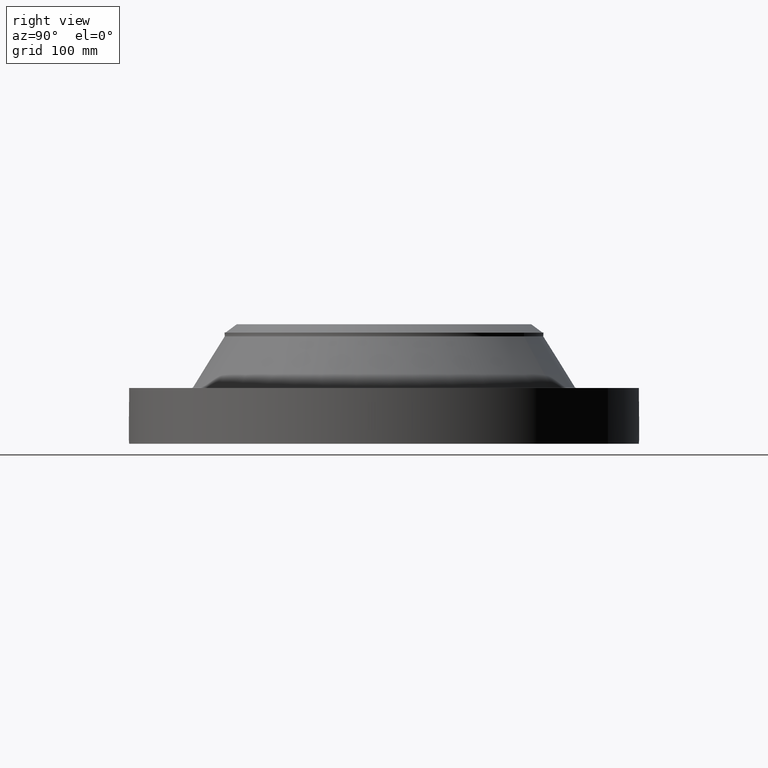
[diagram: clean part render]
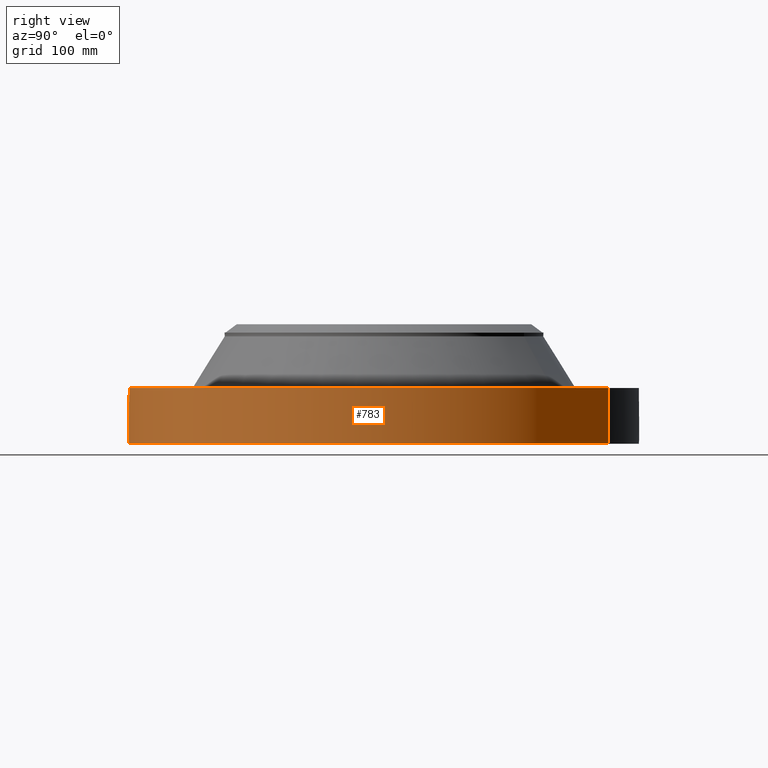
[diagram: same view with one face highlighted and labeled with its STEP entity id]
A machine part, right view. The second image highlights one B-rep face of the part: STEP entity #783.
In plain terms, the highlighted cylindrical surface (partial cylindrical patch) has radius 406.4 mm, axis along (0, 0, -1).
Its self-contained STEP definition (entity closure, byte-faithful):
#38=AXIS2_PLACEMENT_3D('Cylinder Axis2P3D',#35,#36,#37) ;
#169=AXIS2_PLACEMENT_3D('Circle Axis2P3D',#167,#168,$) ;
#687=AXIS2_PLACEMENT_3D('Circle Axis2P3D',#685,#686,$) ;
#35=CARTESIAN_POINT('Axis2P3D Location',(0.,0.,4.00000000002)) ;
#44=CARTESIAN_POINT('Vertex',(-7.6708086177,-14.0413209903,0.250000000001)) ;
#46=CARTESIAN_POINT('Vertex',(7.6708086177,14.0413209903,0.250000000001)) ;
#49=CARTESIAN_POINT('Line Origine',(-7.6708086177,-14.0413209903,2.00000000001)) ;
#53=CARTESIAN_POINT('Vertex',(-7.6708086177,-14.0413209903,3.75000000002)) ;
#60=CARTESIAN_POINT('Vertex',(7.6708086177,14.0413209903,3.75000000002)) ;
#63=CARTESIAN_POINT('Line Origine',(7.6708086177,14.0413209903,2.00000000001)) ;
#167=CARTESIAN_POINT('Axis2P3D Location',(0.,0.,0.250000000001)) ;
#685=CARTESIAN_POINT('Axis2P3D Location',(0.,0.,3.75000000002)) ;
#697=CARTESIAN_POINT('Control Point',(0.000716008740649,-15.999999984,1.2941184614)) ;
#698=CARTESIAN_POINT('Control Point',(0.0189155164198,-15.9999991696,1.29408170801)) ;
#699=CARTESIAN_POINT('Control Point',(0.0371118540406,-15.9999670595,1.29263810614)) ;
#700=CARTESIAN_POINT('Control Point',(0.0550892795914,-15.9999051614,1.28980494183)) ;
#701=CARTESIAN_POINT('Vertex',(0.000715672610257,-15.9999999841,1.29411851063)) ;
#703=CARTESIAN_POINT('Vertex',(0.0550805829282,-15.9999054422,1.2898063303)) ;
#707=CARTESIAN_POINT('Control Point',(0.0550804883369,-15.9999051917,1.28980578611)) ;
#708=CARTESIAN_POINT('Control Point',(0.0955971581975,-15.999765711,1.28541320242)) ;
#709=CARTESIAN_POINT('Control Point',(0.135483165861,-15.9994685853,1.27365431664)) ;
#710=CARTESIAN_POINT('Control Point',(0.172232896312,-15.9990729679,1.2553007981)) ;
#711=CARTESIAN_POINT('Vertex',(0.172232896312,-15.9990729679,1.2553007981)) ;
#715=CARTESIAN_POINT('Control Point',(0.0310650942398,-15.9999698425,0.531193028101)) ;
#716=CARTESIAN_POINT('Control Point',(0.0962766343269,-15.9998432296,0.539443757745)) ;
#717=CARTESIAN_POINT('Control Point',(0.159435338704,-15.9993883705,0.561295185802)) ;
#718=CARTESIAN_POINT('Control Point',(0.216604793973,-15.9986524412,0.596092487099)) ;
#719=CARTESIAN_POINT('Control Point',(0.292161756229,-15.9973970196,0.667062059278)) ;
#720=CARTESIAN_POINT('Control Point',(0.340748207467,-15.9963833295,0.755879254628)) ;
#721=CARTESIAN_POINT('Control Point',(0.354565918617,-15.996075728,0.790101864632)) ;
#722=CARTESIAN_POINT('Control Point',(0.375131957454,-15.9956053359,0.865081019634)) ;
#723=CARTESIAN_POINT('Control Point',(0.376942950259,-15.9955577989,0.942370316908)) ;
#724=CARTESIAN_POINT('Control Point',(0.372580094365,-15.9956631167,0.982943488638)) ;
#725=CARTESIAN_POINT('Control Point',(0.350060932298,-15.9961923162,1.07565849296)) ;
#726=CARTESIAN_POINT('Control Point',(0.300399964469,-15.9972222185,1.15719244928)) ;
#727=CARTESIAN_POINT('Control Point',(0.263624826018,-15.9979099404,1.19825232933)) ;
#728=CARTESIAN_POINT('Control Point',(0.220118858902,-15.9985574669,1.23138562827)) ;
#729=CARTESIAN_POINT('Control Point',(0.172232896312,-15.9990729679,1.2553007981)) ;
#730=CARTESIAN_POINT('Vertex',(0.0310650942398,-15.9999698425,0.531193028101)) ;
#734=CARTESIAN_POINT('Control Point',(0.0310650942398,-15.9999698425,0.531193028101)) ;
#735=CARTESIAN_POINT('Control Point',(0.0207052656616,-15.9999899569,0.530875112117)) ;
#736=CARTESIAN_POINT('Control Point',(0.0103376885925,-16.0000000018,0.530935836227)) ;
#737=CARTESIAN_POINT('Control Point',(-2.72878353735E-006,-16.0000000001,0.531374667806)) ;
#738=CARTESIAN_POINT('Vertex',(-2.72878354453E-006,-16.0000000001,0.531374667806)) ;
#742=CARTESIAN_POINT('Control Point',(-0.19258388645,-15.9988409408,0.587488708577)) ;
#743=CARTESIAN_POINT('Control Point',(-0.148989678445,-15.9993657002,0.562084850851)) ;
#744=CARTESIAN_POINT('Control Point',(-0.101113490464,-15.9997843131,0.543795292524)) ;
#745=CARTESIAN_POINT('Control Point',(-0.0508045021959,-15.9999999914,0.533530615603)) ;
#746=CARTESIAN_POINT('Control Point',(-2.72878356578E-006,-16.0000000001,0.531374667806)) ;
#747=CARTESIAN_POINT('Vertex',(-0.19258388645,-15.9988409408,0.587488708577)) ;
#751=CARTESIAN_POINT('Control Point',(-0.19258388645,-15.9988409408,0.587488708577)) ;
#752=CARTESIAN_POINT('Control Point',(-0.249383480722,-15.9981572233,0.620587801073)) ;
#753=CARTESIAN_POINT('Control Point',(-0.299389087948,-15.9973031864,0.665008577663)) ;
#754=CARTESIAN_POINT('Control Point',(-0.339452303105,-15.996436642,0.719172019087)) ;
#755=CARTESIAN_POINT('Control Point',(-0.383556794993,-15.9954112314,0.817406896753)) ;
#756=CARTESIAN_POINT('Control Point',(-0.392034099285,-15.9951951611,0.922688579526)) ;
#757=CARTESIAN_POINT('Control Point',(-0.389883010529,-15.9952493326,0.962869918273)) ;
#758=CARTESIAN_POINT('Control Point',(-0.375666625605,-15.9956011081,1.03779256542)) ;
#759=CARTESIAN_POINT('Control Point',(-0.343490024534,-15.9963246871,1.10623473482)) ;
#760=CARTESIAN_POINT('Control Point',(-0.324394515857,-15.9967324339,1.13665713791)) ;
#761=CARTESIAN_POINT('Control Point',(-0.26272112727,-15.9979362186,1.21288482922)) ;
#762=CARTESIAN_POINT('Control Point',(-0.179727495034,-15.9991319698,1.2657335242)) ;
#763=CARTESIAN_POINT('Control Point',(-0.121118334668,-15.9997179497,1.28770159131)) ;
#764=CARTESIAN_POINT('Control Point',(-0.0600802985136,-16.0000000972,1.29709991498)) ;
#765=CARTESIAN_POINT('Control Point',(2.58579355311E-005,-16.,1.2941529843)) ;
#766=CARTESIAN_POINT('Vertex',(2.58579355453E-005,-16.,1.2941529843)) ;
#770=CARTESIAN_POINT('Control Point',(0.000715672600691,-15.9999999841,1.29411851061)) ;
#771=CARTESIAN_POINT('Control Point',(0.000370789841834,-15.9999999995,1.29413607272)) ;
#772=CARTESIAN_POINT('Control Point',(2.58579405305E-005,-16.,1.2941529843)) ;
#36=DIRECTION('Axis2P3D Direction',(0.,0.,-0.0393700787402)) ;
#37=DIRECTION('Axis2P3D XDirection',(0.0188750212049,0.0345504945626,0.)) ;
#50=DIRECTION('Vector Direction',(0.,0.,-0.0393700787402)) ;
#64=DIRECTION('Vector Direction',(0.,0.,-0.0393700787402)) ;
#168=DIRECTION('Axis2P3D Direction',(0.,0.,-0.0393700787402)) ;
#686=DIRECTION('Axis2P3D Direction',(0.,0.,-0.0393700787402)) ;
#51=VECTOR('Line Direction',#50,0.0393700787402) ;
#65=VECTOR('Line Direction',#64,0.0393700787402) ;
#691=ORIENTED_EDGE('',*,*,#171,.F.) ;
#692=ORIENTED_EDGE('',*,*,#67,.T.) ;
#693=ORIENTED_EDGE('',*,*,#689,.T.) ;
#694=ORIENTED_EDGE('',*,*,#55,.F.) ;
#775=ORIENTED_EDGE('',*,*,#705,.T.) ;
#776=ORIENTED_EDGE('',*,*,#713,.T.) ;
#777=ORIENTED_EDGE('',*,*,#732,.F.) ;
#778=ORIENTED_EDGE('',*,*,#740,.T.) ;
#779=ORIENTED_EDGE('',*,*,#749,.F.) ;
#780=ORIENTED_EDGE('',*,*,#768,.T.) ;
#781=ORIENTED_EDGE('',*,*,#773,.F.) ;
#782=FACE_BOUND('',#774,.T.) ;
#783=ADVANCED_FACE('PartBody',(#695,#782),#39,.T.) ;
#696=B_SPLINE_CURVE_WITH_KNOTS('',3,(#697,#698,#699,#700),.UNSPECIFIED.,.F.,.U.,(4,4),(34.6166522618,36.6357147524),.UNSPECIFIED.) ;
#706=B_SPLINE_CURVE_WITH_KNOTS('',3,(#707,#708,#709,#710),.UNSPECIFIED.,.F.,.U.,(4,4),(0.,4.57929650909),.UNSPECIFIED.) ;
#714=B_SPLINE_CURVE_WITH_KNOTS('',5,(#715,#716,#717,#718,#719,#720,#721,#722,#723,#724,#725,#726,#727,#728,#729),.UNSPECIFIED.,.F.,.U.,(6,3,3,3,6),(0.,11.4233450278,17.991253577,25.3436090614,35.2885358888),.UNSPECIFIED.) ;
#733=B_SPLINE_CURVE_WITH_KNOTS('',3,(#734,#735,#736,#737),.UNSPECIFIED.,.F.,.U.,(4,4),(0.,1.08069455748),.UNSPECIFIED.) ;
#741=B_SPLINE_CURVE_WITH_KNOTS('',4,(#742,#743,#744,#745,#746),.UNSPECIFIED.,.F.,.U.,(5,5),(0.,7.07917264825),.UNSPECIFIED.) ;
#750=B_SPLINE_CURVE_WITH_KNOTS('',5,(#751,#752,#753,#754,#755,#756,#757,#758,#759,#760,#761,#762,#763,#764,#765),.UNSPECIFIED.,.F.,.U.,(6,3,3,3,6),(0.,11.5294595904,18.615129815,25.04141541,36.2765036706),.UNSPECIFIED.) ;
#769=B_SPLINE_CURVE_WITH_KNOTS('',2,(#770,#771,#772),.UNSPECIFIED.,.F.,.U.,(3,3),(1.02033651815,1.04612649208),.UNSPECIFIED.) ;
#170=CIRCLE('generated circle',#169,16.0000000001) ;
#688=CIRCLE('generated circle',#687,16.0000000001) ;
#39=CYLINDRICAL_SURFACE('generated cylinder',#38,16.0000000001) ;
#55=EDGE_CURVE('',#45,#54,#52,.F.) ;
#67=EDGE_CURVE('',#47,#61,#66,.F.) ;
#171=EDGE_CURVE('',#47,#45,#170,.T.) ;
#689=EDGE_CURVE('',#61,#54,#688,.T.) ;
#705=EDGE_CURVE('',#702,#704,#696,.T.) ;
#713=EDGE_CURVE('',#704,#712,#706,.T.) ;
#732=EDGE_CURVE('',#731,#712,#714,.T.) ;
#740=EDGE_CURVE('',#731,#739,#733,.T.) ;
#749=EDGE_CURVE('',#748,#739,#741,.T.) ;
#768=EDGE_CURVE('',#748,#767,#750,.T.) ;
#773=EDGE_CURVE('',#702,#767,#769,.T.) ;
#690=EDGE_LOOP('',(#691,#692,#693,#694)) ;
#774=EDGE_LOOP('',(#775,#776,#777,#778,#779,#780,#781)) ;
#695=FACE_OUTER_BOUND('',#690,.T.) ;
#52=LINE('Line',#49,#51) ;
#66=LINE('Line',#63,#65) ;
#45=VERTEX_POINT('',#44) ;
#47=VERTEX_POINT('',#46) ;
#54=VERTEX_POINT('',#53) ;
#61=VERTEX_POINT('',#60) ;
#702=VERTEX_POINT('',#701) ;
#704=VERTEX_POINT('',#703) ;
#712=VERTEX_POINT('',#711) ;
#731=VERTEX_POINT('',#730) ;
#739=VERTEX_POINT('',#738) ;
#748=VERTEX_POINT('',#747) ;
#767=VERTEX_POINT('',#766) ;